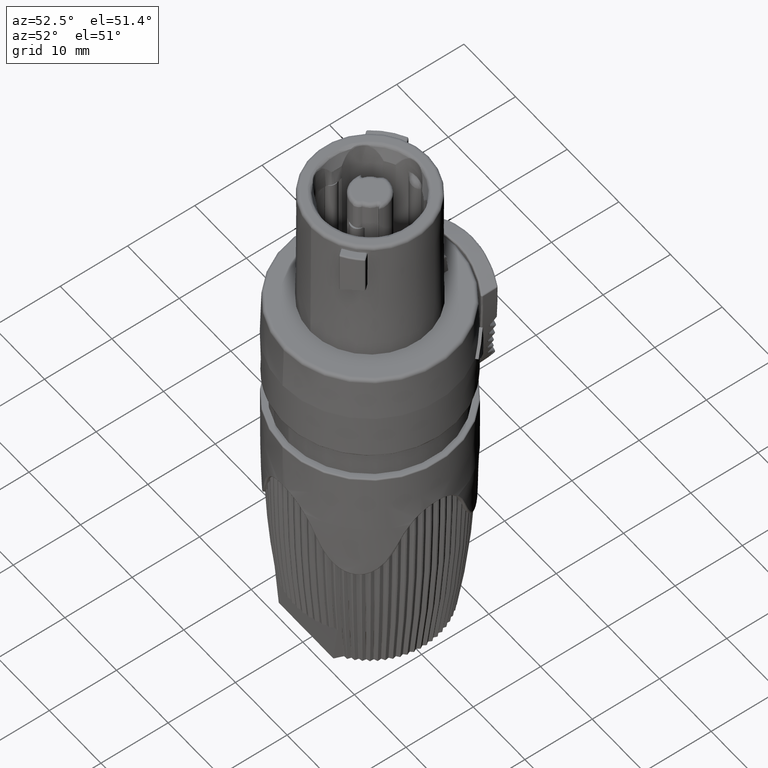
[diagram: clean part render]
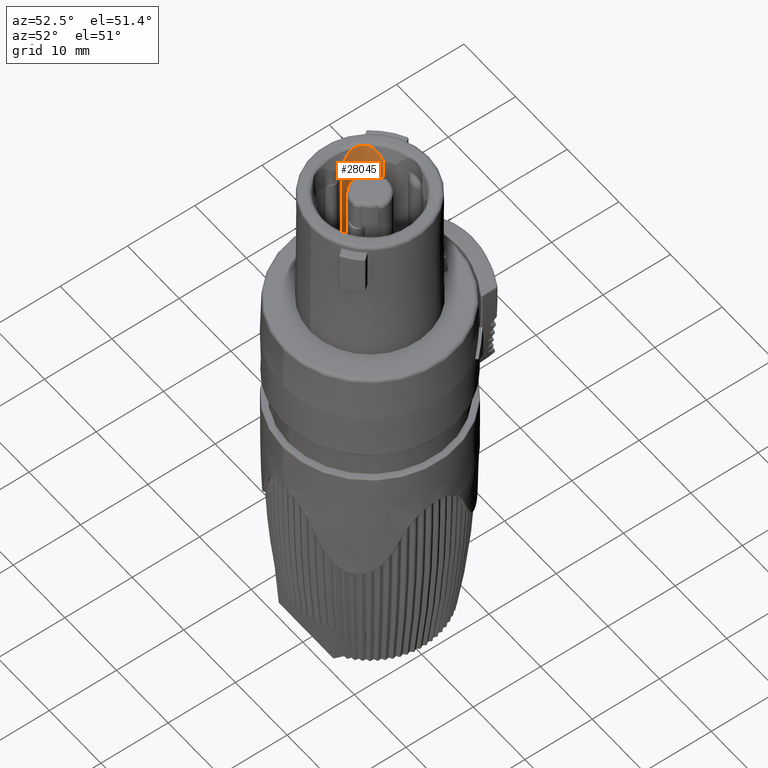
[diagram: same view with one face highlighted and labeled with its STEP entity id]
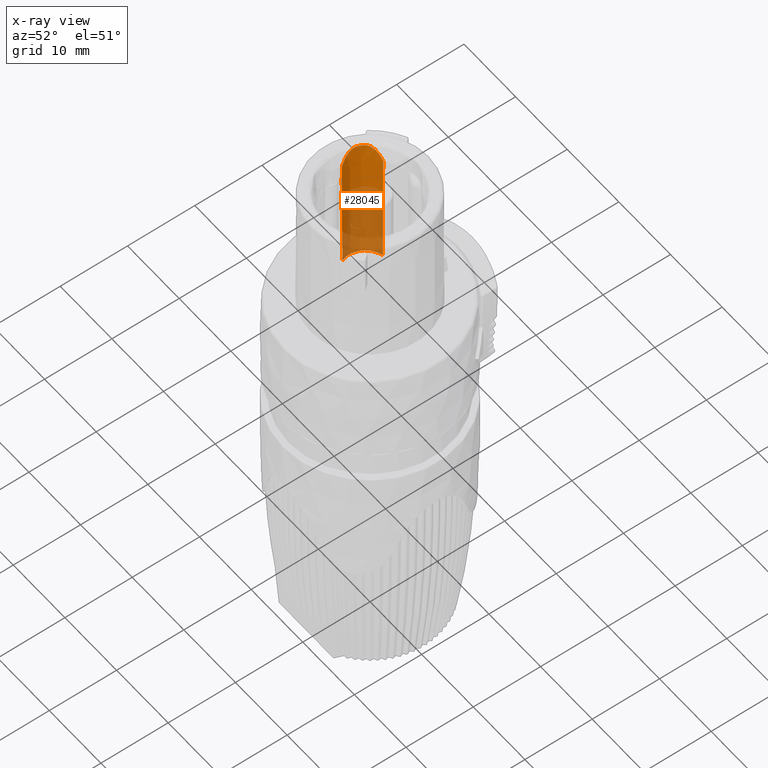
[diagram: x-ray of the same camera — body ghosted, the highlighted face saturated]
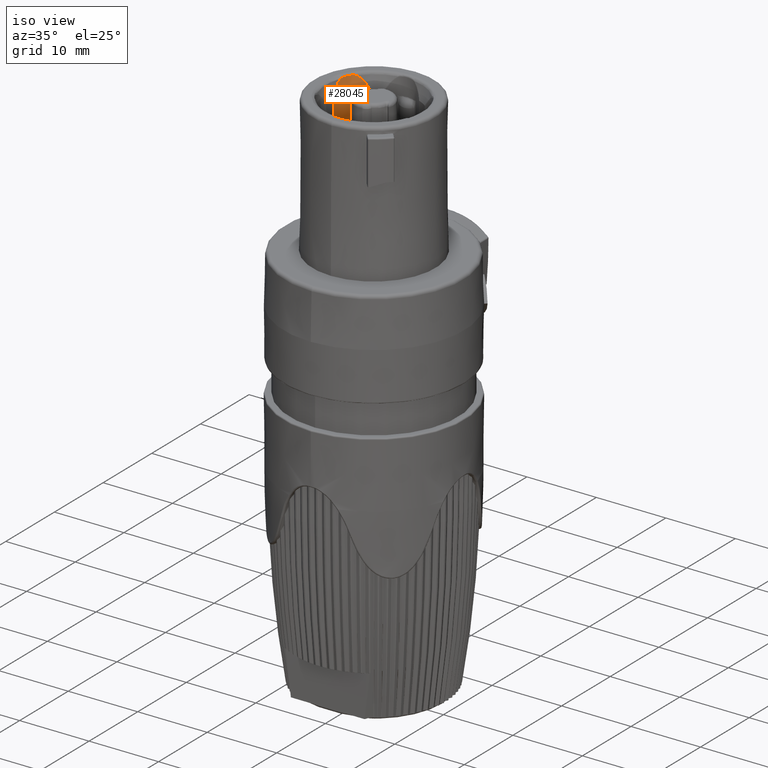
[diagram: same view with one face highlighted and labeled with its STEP entity id]
A machine part, auxiliary view. The second image highlights one B-rep face of the part: STEP entity #28045.
The next image is the same camera in x-ray: the body ghosted, the highlighted face saturated — about 57% of this face is hidden behind the body in this view.
A second angle (iso view) of the same face is appended — the face is thin or edge-on in the first view.
In plain terms, the highlighted conical surface has half-angle 0.25 deg.
Its self-contained STEP definition (entity closure, byte-faithful):
#6121=CARTESIAN_POINT('',(-3.279823901773E0,1.818036075924E0,1.35E1));
#6122=DIRECTION('',(0.E0,0.E0,1.E0));
#6123=DIRECTION('',(-2.002388342133E-1,9.797471149602E-1,0.E0));
#6124=AXIS2_PLACEMENT_3D('',#6121,#6122,#6123);
#6126=CARTESIAN_POINT('',(-6.221867516008E0,6.573210818780E-1,1.35E1));
#6127=CARTESIAN_POINT('',(-6.227159753453E0,6.500470059214E-1,
1.524006701522E1));
#6128=CARTESIAN_POINT('',(-6.237695691182E0,6.354878822295E-1,
1.871571192633E1));
#6129=CARTESIAN_POINT('',(-6.253349088944E0,6.136163932400E-1,
2.391571194608E1));
#6130=CARTESIAN_POINT('',(-6.263695232327E0,5.990142220487E-1,
2.737340034857E1));
#6131=CARTESIAN_POINT('',(-6.268840687777E0,5.917076556373E-1,
2.910000000882E1));
#6133=DIRECTION('',(-4.443701795786E-3,-5.983977268814E-4,9.999899476667E-1));
#6134=VECTOR('',#6133,1.105566536057E-1);
#6135=CARTESIAN_POINT('',(-6.296228503319E0,6.607201993985E-1,2.91E1));
#6136=LINE('',#6135,#6134);
#6137=CARTESIAN_POINT('',(-6.321597678784E0,7.013394198967E-1,
3.127148974221E1));
#6138=CARTESIAN_POINT('',(-6.318882711529E0,6.968692555971E-1,
3.104045359405E1));
#6139=CARTESIAN_POINT('',(-6.313363279842E0,6.877452226320E-1,
3.057974748759E1));
#6140=CARTESIAN_POINT('',(-6.304976985827E0,6.739319101137E-1,
2.989280335999E1));
#6141=CARTESIAN_POINT('',(-6.299439670238E0,6.649789279221E-1,
2.943752289244E1));
#6142=CARTESIAN_POINT('',(-6.296719784119E0,6.606540425483E-1,
2.921055554225E1));
#6144=CARTESIAN_POINT('',(-6.321597678784E0,7.013394198967E-1,
3.127148974221E1));
#6145=CARTESIAN_POINT('',(-6.368899692456E0,8.275024518396E-1,
3.148110814544E1));
#6146=CARTESIAN_POINT('',(-6.447625137560E0,1.085859678436E0,3.187182541325E1));
#6147=CARTESIAN_POINT('',(-6.516497764571E0,1.486446450307E0,3.237158341067E1));
#6148=CARTESIAN_POINT('',(-6.534385909702E0,1.895806745580E0,3.278382189135E1));
#6149=CARTESIAN_POINT('',(-6.511572203656E0,2.168437867537E0,3.299636709172E1));
#6150=CARTESIAN_POINT('',(-6.491475820683E0,2.303921100028E0,3.308707702733E1));
#6152=CARTESIAN_POINT('',(-6.491475820683E0,2.303921100028E0,3.308707702733E1));
#6153=CARTESIAN_POINT('',(-6.487172625456E0,2.332931470009E0,3.310649965635E1));
#6154=CARTESIAN_POINT('',(-6.476414272480E0,2.399485013415E0,3.313666241756E1));
#6155=CARTESIAN_POINT('',(-6.453398031844E0,2.515782782653E0,3.317053781205E1));
#6156=CARTESIAN_POINT('',(-6.422545692107E0,2.644888742888E0,3.319616605296E1));
#6157=CARTESIAN_POINT('',(-6.382278765307E0,2.786063080439E0,3.321573864591E1));
#6158=CARTESIAN_POINT('',(-6.330750029819E0,2.938865156884E0,3.323021739386E1));
#6159=CARTESIAN_POINT('',(-6.265411928998E0,3.103591203248E0,3.324016087587E1));
#6160=CARTESIAN_POINT('',(-6.184261121804E0,3.278701759112E0,3.324570684973E1));
#6161=CARTESIAN_POINT('',(-6.080988491669E0,3.468936274856E0,3.324644055641E1));
#6162=CARTESIAN_POINT('',(-5.963207715048E0,3.653403737746E0,3.324109897003E1));
#6163=CARTESIAN_POINT('',(-5.852679154207E0,3.804351291234E0,3.323091959651E1));
#6164=CARTESIAN_POINT('',(-5.746657977744E0,3.934058811849E0,3.321610210301E1));
#6165=CARTESIAN_POINT('',(-5.646760850337E0,4.044706861040E0,3.319626278102E1));
#6166=CARTESIAN_POINT('',(-5.553307865724E0,4.139610096795E0,3.317054760752E1));
#6167=CARTESIAN_POINT('',(-5.466900520055E0,4.220736134364E0,3.313668350109E1));
#6168=CARTESIAN_POINT('',(-5.416123125581E0,4.265162491229E0,3.310650662527E1));
#6169=CARTESIAN_POINT('',(-5.393793821086E0,4.284191335940E0,3.308707702849E1));
#6171=CARTESIAN_POINT('',(-5.393793821086E0,4.284191335940E0,3.308707702849E1));
#6172=CARTESIAN_POINT('',(-5.289832122867E0,4.372785328298E0,3.299661462619E1));
#6173=CARTESIAN_POINT('',(-5.071195900979E0,4.536324221682E0,3.278460207261E1));
#6174=CARTESIAN_POINT('',(-4.714926627928E0,4.738045817680E0,3.237299337435E1));
#6175=CARTESIAN_POINT('',(-4.338857229544E0,4.892062574984E0,3.187366034696E1));
#6176=CARTESIAN_POINT('',(-4.077647107210E0,4.962409934313E0,3.148245857857E1));
#6177=CARTESIAN_POINT('',(-3.945309146653E0,4.989242524888E0,3.127244723098E1));
#6179=DIRECTION('',(1.810834482430E-3,-4.080879175677E-3,-9.999900336022E-1));
#6180=VECTOR('',#6179,1.777262436002E1);
#6181=CARTESIAN_POINT('',(-3.945309146653E0,4.989242524888E0,3.127244723098E1));
#6182=LINE('',#6181,#6180);
#6285=CARTESIAN_POINT('',(-3.279823901773E0,1.818036075924E0,2.909999829552E1));
#6286=DIRECTION('',(0.E0,0.E0,-1.E0));
#6287=DIRECTION('',(-9.251613211282E-1,-3.795741428078E-1,0.E0));
#6288=AXIS2_PLACEMENT_3D('',#6285,#6286,#6287);
#16647=CARTESIAN_POINT('',(-6.268836253556E0,5.917074612704E-1,
2.909999829552E1));
#16648=CARTESIAN_POINT('',(-6.296228496375E0,6.607202020627E-1,
2.909999829552E1));
#16649=VERTEX_POINT('',#16647);
#16650=VERTEX_POINT('',#16648);
#16673=CARTESIAN_POINT('',(-6.296719784119E0,6.606540425483E-1,
2.921055554225E1));
#16674=VERTEX_POINT('',#16673);
#16725=VERTEX_POINT('',#6144);
#16726=VERTEX_POINT('',#6150);
#16727=VERTEX_POINT('',#6169);
#16729=VERTEX_POINT('',#6177);
#16886=CARTESIAN_POINT('',(-3.913125867334E0,4.916714591982E0,1.35E1));
#16887=CARTESIAN_POINT('',(-6.221867516008E0,6.573210818780E-1,1.35E1));
#16888=VERTEX_POINT('',#16886);
#16889=VERTEX_POINT('',#16887);
#28025=CARTESIAN_POINT('',(-3.279823901773E0,1.818036075924E0,
2.337299763370E1));
#28026=DIRECTION('',(0.E0,0.E0,1.E0));
#28027=DIRECTION('',(7.660444431190E-1,6.427876096865E-1,0.E0));
#28028=AXIS2_PLACEMENT_3D('',#28025,#28026,#28027);
#28029=CONICAL_SURFACE('',#28028,3.205812335914E0,2.5E-1);
#28030=ORIENTED_EDGE('',*,*,#22843,.T.);
#28032=ORIENTED_EDGE('',*,*,#28031,.T.);
#28034=ORIENTED_EDGE('',*,*,#28033,.T.);
#28036=ORIENTED_EDGE('',*,*,#28035,.T.);
#28038=ORIENTED_EDGE('',*,*,#28037,.F.);
#28039=ORIENTED_EDGE('',*,*,#27769,.T.);
#28040=ORIENTED_EDGE('',*,*,#27927,.T.);
#28041=ORIENTED_EDGE('',*,*,#27969,.T.);
#28042=ORIENTED_EDGE('',*,*,#28018,.T.);
#28043=EDGE_LOOP('',(#28030,#28032,#28034,#28036,#28038,#28039,#28040,#28041,
#28042));
#28044=FACE_OUTER_BOUND('',#28043,.F.);
#28045=ADVANCED_FACE('',(#28044),#28029,.F.);
#6125=CIRCLE('',#6124,3.162732983586E0);
#6132=B_SPLINE_CURVE_WITH_KNOTS('',3,(#6126,#6127,#6128,#6129,#6130,#6131),
.UNSPECIFIED.,.F.,.F.,(4,1,1,4),(0.E0,3.333333333333E-1,6.666666666667E-1,1.E0),
.UNSPECIFIED.);
#6143=B_SPLINE_CURVE_WITH_KNOTS('',3,(#6137,#6138,#6139,#6140,#6141,#6142),
.UNSPECIFIED.,.F.,.F.,(4,1,1,4),(0.E0,3.333333333333E-1,6.666666666667E-1,1.E0),
.UNSPECIFIED.);
#6151=B_SPLINE_CURVE_WITH_KNOTS('',3,(#6144,#6145,#6146,#6147,#6148,#6149,
#6150),.UNSPECIFIED.,.F.,.F.,(4,1,1,1,4),(0.E0,2.5E-1,5.E-1,7.5E-1,1.E0),
.UNSPECIFIED.);
#6170=B_SPLINE_CURVE_WITH_KNOTS('',3,(#6152,#6153,#6154,#6155,#6156,#6157,#6158,
#6159,#6160,#6161,#6162,#6163,#6164,#6165,#6166,#6167,#6168,#6169),
.UNSPECIFIED.,.F.,.F.,(4,1,1,1,1,1,1,1,1,1,1,1,1,1,1,4),(0.E0,6.666666666667E-2,
1.333333333333E-1,2.E-1,2.666666666667E-1,3.333333333333E-1,4.E-1,
4.666666666667E-1,5.333333333333E-1,6.E-1,6.666666666667E-1,7.333333333333E-1,
8.E-1,8.666666666667E-1,9.333333333333E-1,1.E0),.UNSPECIFIED.);
#6178=B_SPLINE_CURVE_WITH_KNOTS('',3,(#6171,#6172,#6173,#6174,#6175,#6176,
#6177),.UNSPECIFIED.,.F.,.F.,(4,1,1,1,4),(0.E0,2.5E-1,5.E-1,7.5E-1,1.E0),
.UNSPECIFIED.);
#6289=CIRCLE('',#6288,3.230801248952E0);
#22843=EDGE_CURVE('',#16888,#16889,#6125,.T.);
#27769=EDGE_CURVE('',#16725,#16726,#6151,.T.);
#27927=EDGE_CURVE('',#16726,#16727,#6170,.T.);
#27969=EDGE_CURVE('',#16727,#16729,#6178,.T.);
#28018=EDGE_CURVE('',#16729,#16888,#6182,.T.);
#28031=EDGE_CURVE('',#16889,#16649,#6132,.T.);
#28033=EDGE_CURVE('',#16649,#16650,#6289,.T.);
#28035=EDGE_CURVE('',#16650,#16674,#6136,.T.);
#28037=EDGE_CURVE('',#16725,#16674,#6143,.T.);